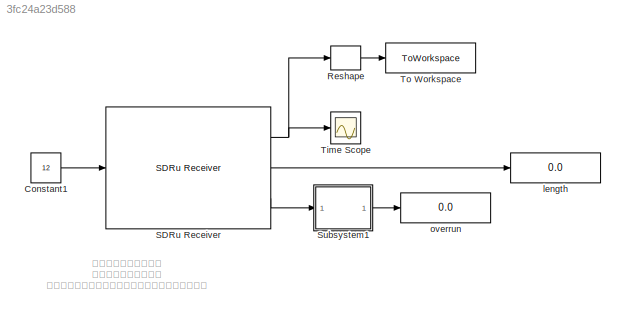
MODEL slx_3fc24a23d588
KIND model
CONFIG AbsTol = auto
CONFIG EnableMultiTasking = off
CONFIG FixedStep = auto
CONFIG MaxStep = auto
CONFIG MinStep = auto
CONFIG RelTol = 1e-3
CONFIG SampleTimeConstraint = Unconstrained
CONFIG Solver = FixedStepAuto
CONFIG SolverName = FixedStepAuto
CONFIG StartTime = 0.0
CONFIG StopFcn = I = real(data);\nQ = imag(data);
CONFIG StopTime = 3
BLOCK [Constant] Constant1
  Value = 12
BLOCK [Reshape] Reshape
  OutputDimensionality = Column vector (2-D)
  Ports = [1, 1]
BLOCK [Reference] SDRu Receiver  REF=commsdrhw_v2/SDRu Receiver
  Ports = [1, 3]
  SourceBlock = commsdrhw_v2/SDRu Receiver
  SourceProductBaseCode = USRP
  SourceType = SDRu Receiver
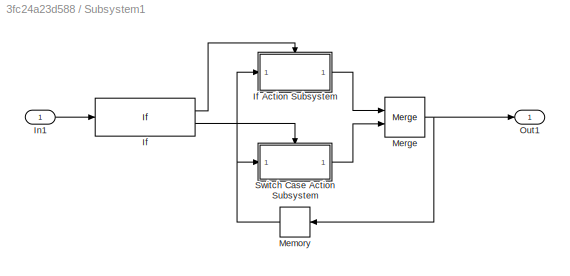
BLOCK [SubSystem] Subsystem1
  Ports = [1, 1]
  RequestExecContextInheritance = off
BLOCK [If] Subsystem1/If
  IfExpression = u1 ~= 0
  Ports = [1, 2]
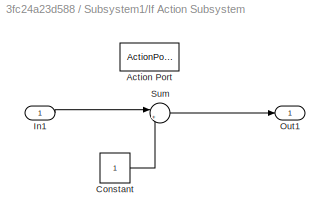
BLOCK [SubSystem] Subsystem1/If Action Subsystem
  Ports = [1, 1, 0, 0, 0, 0, 0, 1]
  RequestExecContextInheritance = off
  TreatAsAtomicUnit = on
BLOCK [ActionPort] Subsystem1/If Action Subsystem/Action Port
  ActionPortLabel = if(u1 ~= 0)
BLOCK [Constant] Subsystem1/If Action Subsystem/Constant
BLOCK [Inport] Subsystem1/If Action Subsystem/In1
BLOCK [Outport] Subsystem1/If Action Subsystem/Out1
  VectorParamsAs1DForOutWhenUnconnected = off
BLOCK [Sum] Subsystem1/If Action Subsystem/Sum
  Inputs = |++
  Ports = [2, 1]
BLOCK [Inport] Subsystem1/In1
BLOCK [Memory] Subsystem1/Memory
  NameLocation = top
BLOCK [Merge] Subsystem1/Merge
  Ports = [2, 1]
BLOCK [Outport] Subsystem1/Out1
  VectorParamsAs1DForOutWhenUnconnected = off
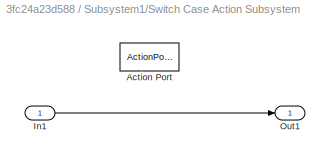
BLOCK [SubSystem] Subsystem1/Switch Case Action Subsystem
  Ports = [1, 1, 0, 0, 0, 0, 0, 1]
  RequestExecContextInheritance = off
  TreatAsAtomicUnit = on
BLOCK [ActionPort] Subsystem1/Switch Case Action Subsystem/Action Port
  ActionPortLabel = else
BLOCK [Inport] Subsystem1/Switch Case Action Subsystem/In1
BLOCK [Outport] Subsystem1/Switch Case Action Subsystem/Out1
  VectorParamsAs1DForOutWhenUnconnected = off
BLOCK [Scope] Time Scope
  DefaultConfigurationName = spbscopes.TimeScopeBlockCfg
  Floating = off
  NumInputPorts = 1
  Ports = [1]
  ScopeSpecificationString = spbscopes.TimeScopeBlockCfg('CurrentConfiguration', extmgr.ConfigurationSet(extmgr.Configuration('Core','General UI',true),extmgr.Configuration('Core','Source UI',true),extmgr.Configuration('Sources','WiredSimulink',true),extmgr.Configuration('Visuals','Time Domain',true,'DisplayPropertyDefaults',struct('MinYLimReal','-37.625','MaxYLimReal','38.625','YLabelReal','Amplitude','MinYLimMag','0.00000',...<+1437ch>
  UserDataPersistent = on
BLOCK [ToWorkspace] To Workspace
  FixptAsFi = on
  MaxDataPoints = inf
  Ports = [1]
  SampleTime = -1
  Save2DSignal = 2-D array (concatenate along first dimension)
  VariableName = data
BLOCK [Display] length
  Decimation = 1
  Ports = [1]
BLOCK [Display] overrun
  Decimation = 1
  Ports = [1]
ANNOTATION (root): 突发模式，一秒一突发 将数据输出到工作空间 此程序用来查看接收信号的波形图，统计热噪声水平
LINE Constant1:1 -> SDRu Receiver:1
LINE Reshape:1 -> To Workspace:1
NET SDRu Receiver:1 -> Reshape:1, Time Scope:1
LINE SDRu Receiver:2 -> length:1
LINE SDRu Receiver:3 -> Subsystem1:1
LINE Subsystem1/If Action Subsystem/Constant:1 -> Subsystem1/If Action Subsystem/Sum:2
LINE Subsystem1/If Action Subsystem/In1:1 -> Subsystem1/If Action Subsystem/Sum:1
LINE Subsystem1/If Action Subsystem/Sum:1 -> Subsystem1/If Action Subsystem/Out1:1
LINE Subsystem1/If Action Subsystem:1 -> Subsystem1/Merge:1
LINE Subsystem1/If:1 -> Subsystem1/If Action Subsystem:ifaction
LINE Subsystem1/If:2 -> Subsystem1/Switch Case Action Subsystem:ifaction
LINE Subsystem1/In1:1 -> Subsystem1/If:1
NET Subsystem1/Memory:1 -> Subsystem1/If Action Subsystem:1, Subsystem1/Switch Case Action Subsystem:1
NET Subsystem1/Merge:1 -> Subsystem1/Memory:1, Subsystem1/Out1:1
LINE Subsystem1/Switch Case Action Subsystem/In1:1 -> Subsystem1/Switch Case Action Subsystem/Out1:1
LINE Subsystem1/Switch Case Action Subsystem:1 -> Subsystem1/Merge:2
LINE Subsystem1:1 -> overrun:1
note: NET lines group one-source signal fan-out (src -> all destinations, sorted); 1:1 wires keep LINE
